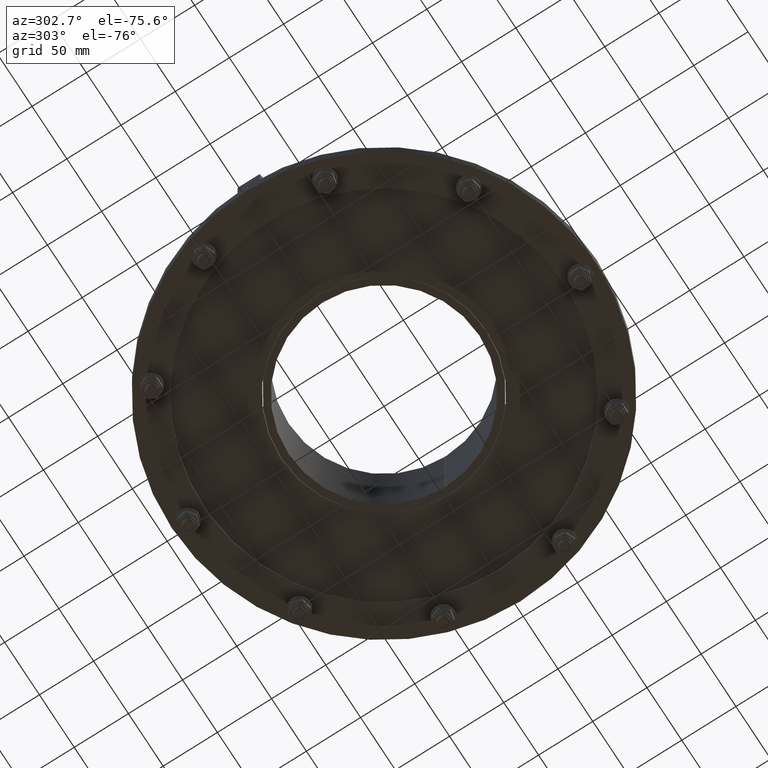
[diagram: clean part render]
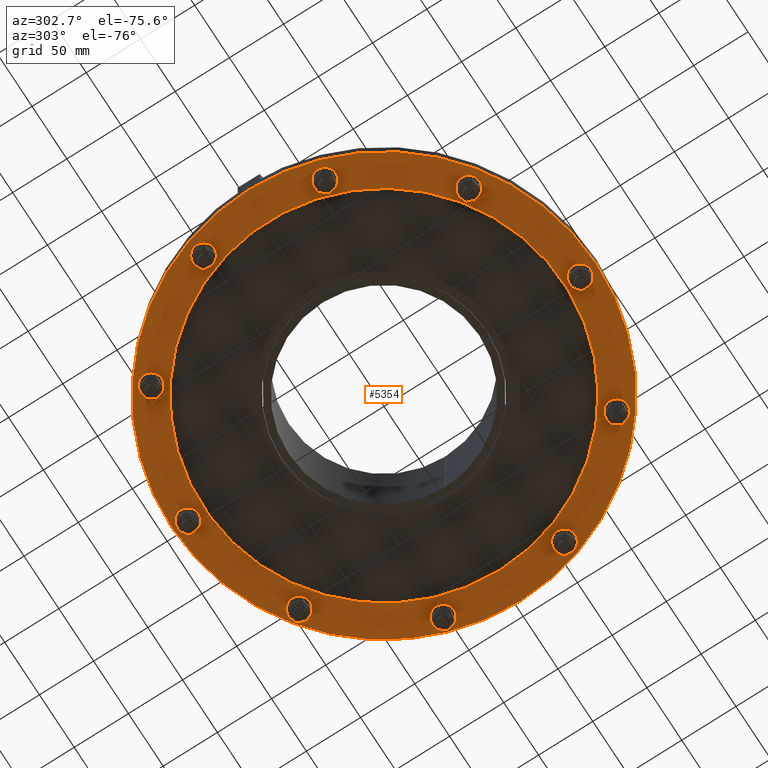
[diagram: same view with one face highlighted and labeled with its STEP entity id]
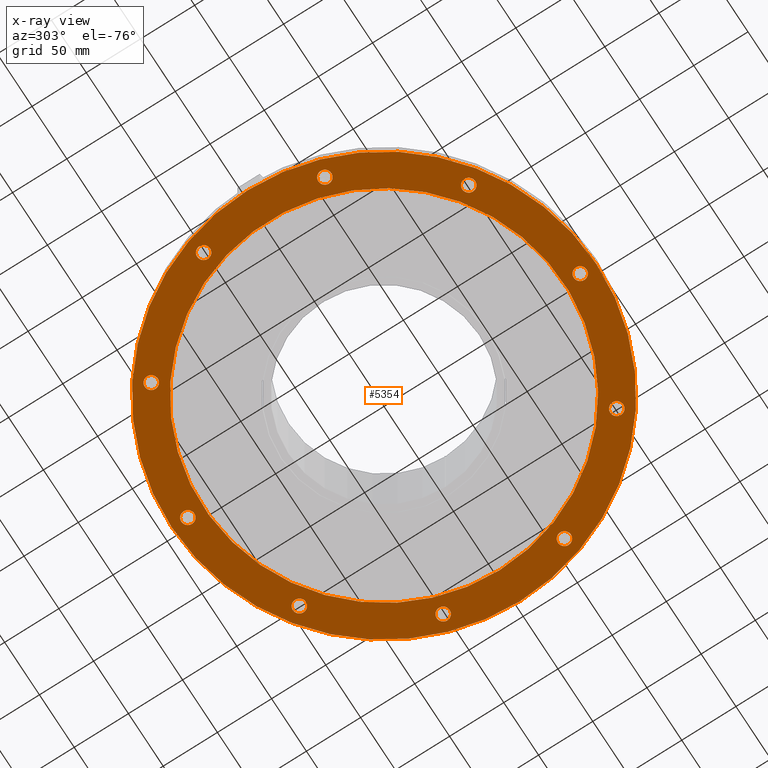
[diagram: x-ray of the same camera — body ghosted, the highlighted face saturated]
A machine part, auxiliary view. The second image highlights one B-rep face of the part: STEP entity #5354.
The next image is the same camera in x-ray: the body ghosted, the highlighted face saturated — about 0% of this face is hidden behind the body in this view.
In plain terms, the highlighted planar face has unit normal (0, 0, -1).
Its self-contained STEP definition (entity closure, byte-faithful):
#5193=CARTESIAN_POINT('',(195.75000000000003,2.397246E-014,0.0));
#5194=VERTEX_POINT('',#5193);
#5195=CARTESIAN_POINT('',(0.0,0.0,0.0));
#5196=DIRECTION('',(0.0,0.0,1.0));
#5197=DIRECTION('',(-1.0,0.0,0.0));
#5198=AXIS2_PLACEMENT_3D('',#5195,#5196,#5197);
#5199=CIRCLE('',#5198,195.75000000000003);
#5200=EDGE_CURVE('',#5194,#5194,#5199,.T.);
#5225=CARTESIAN_POINT('',(0.0,0.0,0.0));
#5226=DIRECTION('',(0.0,0.0,-1.0));
#5227=DIRECTION('',(-1.0,0.0,0.0));
#5228=AXIS2_PLACEMENT_3D('',#5225,#5226,#5227);
#5229=PLANE('',#5228);
#5230=ORIENTED_EDGE('',*,*,#5200,.F.);
#5231=EDGE_LOOP('',(#5230));
#5232=FACE_OUTER_BOUND('',#5231,.T.);
#5233=CARTESIAN_POINT('',(166.25,-2.035975E-014,0.0));
#5234=VERTEX_POINT('',#5233);
#5235=CARTESIAN_POINT('',(0.0,0.0,0.0));
#5236=DIRECTION('',(0.0,0.0,-1.0));
#5237=DIRECTION('',(-1.0,0.0,0.0));
#5238=AXIS2_PLACEMENT_3D('',#5235,#5236,#5237);
#5239=CIRCLE('',#5238,166.25);
#5240=EDGE_CURVE('',#5234,#5234,#5239,.T.);
#5241=ORIENTED_EDGE('',*,*,#5240,.F.);
#5242=EDGE_LOOP('',(#5241));
#5243=FACE_BOUND('',#5242,.T.);
#5244=CARTESIAN_POINT('',(-4.854101966249651,184.52671151375489,0.0));
#5245=VERTEX_POINT('',#5244);
#5246=CARTESIAN_POINT('',(3.552714E-014,181.00000000000006,0.0));
#5247=DIRECTION('',(0.0,0.0,1.0));
#5248=DIRECTION('',(0.809016994374947,-0.587785252292473,0.0));
#5249=AXIS2_PLACEMENT_3D('',#5246,#5247,#5248);
#5250=CIRCLE('',#5249,6.000000000000003);
#5251=EDGE_CURVE('',#5245,#5245,#5250,.T.);
#5252=ORIENTED_EDGE('',*,*,#5251,.T.);
#5253=EDGE_LOOP('',(#5252));
#5254=FACE_BOUND('',#5253,.T.);
#5255=CARTESIAN_POINT('',(104.53502869868798,152.13841507963639,0.0));
#5256=VERTEX_POINT('',#5255);
#5257=CARTESIAN_POINT('',(106.38913066493768,146.43207598186549,0.0));
#5258=DIRECTION('',(0.0,0.0,1.0));
#5259=DIRECTION('',(0.309016994374947,-0.951056516295154,0.0));
#5260=AXIS2_PLACEMENT_3D('',#5257,#5258,#5259);
#5261=CIRCLE('',#5260,6.000000000000001);
#5262=EDGE_CURVE('',#5256,#5256,#5261,.T.);
#5263=ORIENTED_EDGE('',*,*,#5262,.T.);
#5264=EDGE_LOOP('',(#5263));
#5265=FACE_BOUND('',#5264,.T.);
#5266=CARTESIAN_POINT('',(173.99533141567252,61.638415079636403,0.0));
#5267=VERTEX_POINT('',#5266);
#5268=CARTESIAN_POINT('',(172.14122944942284,55.932075981865495,0.0));
#5269=DIRECTION('',(0.0,0.0,1.0));
#5270=DIRECTION('',(-0.309016994374948,-0.951056516295154,0.0));
#5271=AXIS2_PLACEMENT_3D('',#5268,#5269,#5270);
#5272=CIRCLE('',#5271,6.000000000000001);
#5273=EDGE_CURVE('',#5267,#5267,#5272,.T.);
#5274=ORIENTED_EDGE('',*,*,#5273,.T.);
#5275=EDGE_LOOP('',(#5274));
#5276=FACE_BOUND('',#5275,.T.);
#5277=CARTESIAN_POINT('',(176.99533141567252,-52.405364468110641,0.0));
#5278=VERTEX_POINT('',#5277);
#5279=CARTESIAN_POINT('',(172.14122944942284,-55.932075981865481,0.0));
#5280=DIRECTION('',(0.0,0.0,1.0));
#5281=DIRECTION('',(-0.809016994374947,-0.587785252292473,0.0));
#5282=AXIS2_PLACEMENT_3D('',#5279,#5280,#5281);
#5283=CIRCLE('',#5282,6.000000000000001);
#5284=EDGE_CURVE('',#5278,#5278,#5283,.T.);
#5285=ORIENTED_EDGE('',*,*,#5284,.T.);
#5286=EDGE_LOOP('',(#5285));
#5287=FACE_BOUND('',#5286,.T.);
#5288=CARTESIAN_POINT('',(112.3891306649376,-146.43207598186552,0.0));
#5289=VERTEX_POINT('',#5288);
#5290=CARTESIAN_POINT('',(106.38913066493762,-146.43207598186552,0.0));
#5291=DIRECTION('',(0.0,0.0,1.0));
#5292=DIRECTION('',(-1.0,0.0,0.0));
#5293=AXIS2_PLACEMENT_3D('',#5290,#5291,#5292);
#5294=CIRCLE('',#5293,6.000000000000001);
#5295=EDGE_CURVE('',#5289,#5289,#5294,.T.);
#5296=ORIENTED_EDGE('',*,*,#5295,.T.);
#5297=EDGE_LOOP('',(#5296));
#5298=FACE_BOUND('',#5297,.T.);
#5299=CARTESIAN_POINT('',(4.854101966249651,-184.52671151375483,0.0));
#5300=VERTEX_POINT('',#5299);
#5301=CARTESIAN_POINT('',(-1.776357E-014,-181.0,0.0));
#5302=DIRECTION('',(0.0,0.0,1.0));
#5303=DIRECTION('',(-0.809016994374947,0.587785252292473,0.0));
#5304=AXIS2_PLACEMENT_3D('',#5301,#5302,#5303);
#5305=CIRCLE('',#5304,6.000000000000001);
#5306=EDGE_CURVE('',#5300,#5300,#5305,.T.);
#5307=ORIENTED_EDGE('',*,*,#5306,.T.);
#5308=EDGE_LOOP('',(#5307));
#5309=FACE_BOUND('',#5308,.T.);
#5310=CARTESIAN_POINT('',(-104.53502869868798,-152.13841507963639,0.0));
#5311=VERTEX_POINT('',#5310);
#5312=CARTESIAN_POINT('',(-106.38913066493768,-146.43207598186549,0.0));
#5313=DIRECTION('',(0.0,0.0,1.0));
#5314=DIRECTION('',(-0.309016994374947,0.951056516295154,0.0));
#5315=AXIS2_PLACEMENT_3D('',#5312,#5313,#5314);
#5316=CIRCLE('',#5315,6.0);
#5317=EDGE_CURVE('',#5311,#5311,#5316,.T.);
#5318=ORIENTED_EDGE('',*,*,#5317,.T.);
#5319=EDGE_LOOP('',(#5318));
#5320=FACE_BOUND('',#5319,.T.);
#5321=CARTESIAN_POINT('',(-173.9953314156725,-61.638415079636424,0.0));
#5322=VERTEX_POINT('',#5321);
#5323=CARTESIAN_POINT('',(-172.14122944942284,-55.932075981865516,0.0));
#5324=DIRECTION('',(0.0,0.0,1.0));
#5325=DIRECTION('',(0.309016994374947,0.951056516295154,0.0));
#5326=AXIS2_PLACEMENT_3D('',#5323,#5324,#5325);
#5327=CIRCLE('',#5326,6.000000000000001);
#5328=EDGE_CURVE('',#5322,#5322,#5327,.T.);
#5329=ORIENTED_EDGE('',*,*,#5328,.T.);
#5330=EDGE_LOOP('',(#5329));
#5331=FACE_BOUND('',#5330,.T.);
#5332=CARTESIAN_POINT('',(-176.99533141567252,52.405364468110641,0.0));
#5333=VERTEX_POINT('',#5332);
#5334=CARTESIAN_POINT('',(-172.14122944942284,55.932075981865481,0.0));
#5335=DIRECTION('',(0.0,0.0,1.0));
#5336=DIRECTION('',(0.809016994374947,0.587785252292473,0.0));
#5337=AXIS2_PLACEMENT_3D('',#5334,#5335,#5336);
#5338=CIRCLE('',#5337,6.000000000000001);
#5339=EDGE_CURVE('',#5333,#5333,#5338,.T.);
#5340=ORIENTED_EDGE('',*,*,#5339,.T.);
#5341=EDGE_LOOP('',(#5340));
#5342=FACE_BOUND('',#5341,.T.);
#5343=CARTESIAN_POINT('',(-112.38913066493765,146.43207598186549,0.0));
#5344=VERTEX_POINT('',#5343);
#5345=CARTESIAN_POINT('',(-106.38913066493765,146.43207598186549,0.0));
#5346=DIRECTION('',(0.0,0.0,1.0));
#5347=DIRECTION('',(1.0,0.0,0.0));
#5348=AXIS2_PLACEMENT_3D('',#5345,#5346,#5347);
#5349=CIRCLE('',#5348,6.000000000000001);
#5350=EDGE_CURVE('',#5344,#5344,#5349,.T.);
#5351=ORIENTED_EDGE('',*,*,#5350,.T.);
#5352=EDGE_LOOP('',(#5351));
#5353=FACE_BOUND('',#5352,.T.);
#5354=ADVANCED_FACE('',(#5232,#5243,#5254,#5265,#5276,#5287,#5298,#5309,#5320,#5331,#5342,#5353),#5229,.T.);